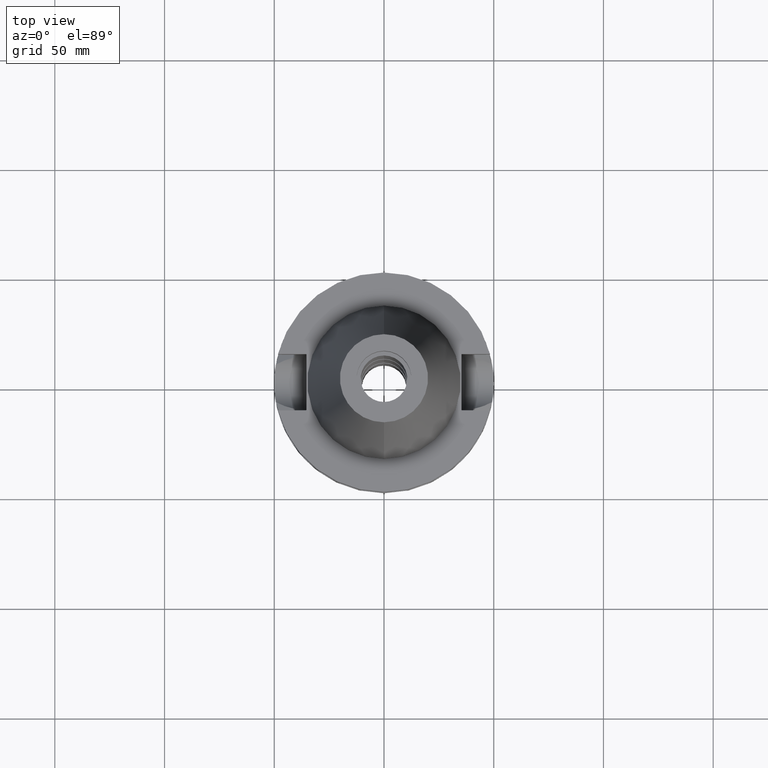
[diagram: clean part render]
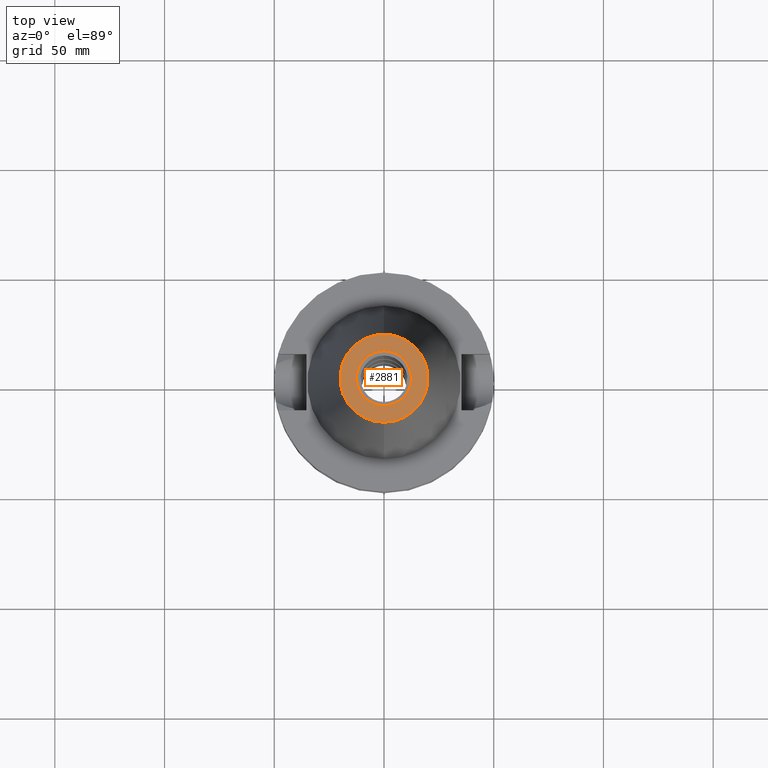
[diagram: same view with one face highlighted and labeled with its STEP entity id]
A machine part, top view. The second image highlights one B-rep face of the part: STEP entity #2881.
In plain terms, the highlighted planar face has unit normal (0, 0, -1).
Its self-contained STEP definition (entity closure, byte-faithful):
#5 = EDGE_LOOP ( 'NONE', ( #2238, #2409 ) ) ;
#129 = EDGE_CURVE ( 'NONE', #2438, #211, #1907, .T. ) ;
#211 = VERTEX_POINT ( 'NONE', #501 ) ;
#277 = ORIENTED_EDGE ( 'NONE', *, *, #1516, .F. ) ;
#501 = CARTESIAN_POINT ( 'NONE',  ( 0.0000000000000000000, 12.50000000000000000, 101.7999999999999972 ) ) ;
#572 = CARTESIAN_POINT ( 'NONE',  ( 0.0000000000000000000, 2.651237855473999832E-14, 101.7999999999999972 ) ) ;
#605 = AXIS2_PLACEMENT_3D ( 'NONE', #2184, #2203, #3037 ) ;
#612 = FACE_OUTER_BOUND ( 'NONE', #1312, .T. ) ;
#656 = AXIS2_PLACEMENT_3D ( 'NONE', #2242, #3102, #2258 ) ;
#710 = CIRCLE ( 'NONE', #834, 20.07942971896000017 ) ;
#717 = AXIS2_PLACEMENT_3D ( 'NONE', #572, #2871, #1725 ) ;
#769 = AXIS2_PLACEMENT_3D ( 'NONE', #1024, #3032, #2731 ) ;
#834 = AXIS2_PLACEMENT_3D ( 'NONE', #1105, #1939, #1346 ) ;
#1024 = CARTESIAN_POINT ( 'NONE',  ( 0.0000000000000000000, 2.651237855473999832E-14, 101.7999999999999972 ) ) ;
#1037 = VERTEX_POINT ( 'NONE', #1065 ) ;
#1065 = CARTESIAN_POINT ( 'NONE',  ( 0.0000000000000000000, 20.07942971896000017, 101.7999999999999972 ) ) ;
#1105 = CARTESIAN_POINT ( 'NONE',  ( 0.0000000000000000000, 1.847992019912999597E-14, 101.7999999999999972 ) ) ;
#1114 = PLANE ( 'NONE',  #656 ) ;
#1312 = EDGE_LOOP ( 'NONE', ( #2630, #277 ) ) ;
#1346 = DIRECTION ( 'NONE',  ( 0.0000000000000000000, -1.000000000000000000, 0.0000000000000000000 ) ) ;
#1516 = EDGE_CURVE ( 'NONE', #2757, #1037, #710, .T. ) ;
#1725 = DIRECTION ( 'NONE',  ( 0.0000000000000000000, 1.000000000000000000, 0.0000000000000000000 ) ) ;
#1759 = CARTESIAN_POINT ( 'NONE',  ( 0.0000000000000000000, -20.07942971896000017, 101.7999999999999972 ) ) ;
#1907 = CIRCLE ( 'NONE', #769, 12.50000000000000000 ) ;
#1939 = DIRECTION ( 'NONE',  ( 0.0000000000000000000, 0.0000000000000000000, -1.000000000000000000 ) ) ;
#2080 = CARTESIAN_POINT ( 'NONE',  ( 0.0000000000000000000, -12.50000000000000000, 101.7999999999999972 ) ) ;
#2184 = CARTESIAN_POINT ( 'NONE',  ( 0.0000000000000000000, 1.847992019912999597E-14, 101.7999999999999972 ) ) ;
#2203 = DIRECTION ( 'NONE',  ( 0.0000000000000000000, 0.0000000000000000000, -1.000000000000000000 ) ) ;
#2238 = ORIENTED_EDGE ( 'NONE', *, *, #2391, .F. ) ;
#2242 = CARTESIAN_POINT ( 'NONE',  ( 0.0000000000000000000, 2.471337240678999545E-14, 101.7999999999999972 ) ) ;
#2258 = DIRECTION ( 'NONE',  ( 0.0000000000000000000, -1.000000000000000000, 0.0000000000000000000 ) ) ;
#2391 = EDGE_CURVE ( 'NONE', #211, #2438, #3402, .T. ) ;
#2409 = ORIENTED_EDGE ( 'NONE', *, *, #129, .F. ) ;
#2438 = VERTEX_POINT ( 'NONE', #2080 ) ;
#2630 = ORIENTED_EDGE ( 'NONE', *, *, #3213, .F. ) ;
#2731 = DIRECTION ( 'NONE',  ( 0.0000000000000000000, -1.000000000000000000, 0.0000000000000000000 ) ) ;
#2757 = VERTEX_POINT ( 'NONE', #1759 ) ;
#2871 = DIRECTION ( 'NONE',  ( 0.0000000000000000000, 0.0000000000000000000, 1.000000000000000000 ) ) ;
#2881 = ADVANCED_FACE ( 'NONE', ( #612, #3661 ), #1114, .F. ) ;
#3032 = DIRECTION ( 'NONE',  ( 0.0000000000000000000, 0.0000000000000000000, 1.000000000000000000 ) ) ;
#3037 = DIRECTION ( 'NONE',  ( 0.0000000000000000000, 1.000000000000000000, 0.0000000000000000000 ) ) ;
#3102 = DIRECTION ( 'NONE',  ( 0.0000000000000000000, 0.0000000000000000000, -1.000000000000000000 ) ) ;
#3168 = CIRCLE ( 'NONE', #605, 20.07942971896000017 ) ;
#3213 = EDGE_CURVE ( 'NONE', #1037, #2757, #3168, .T. ) ;
#3402 = CIRCLE ( 'NONE', #717, 12.50000000000000000 ) ;
#3661 = FACE_BOUND ( 'NONE', #5, .T. ) ;